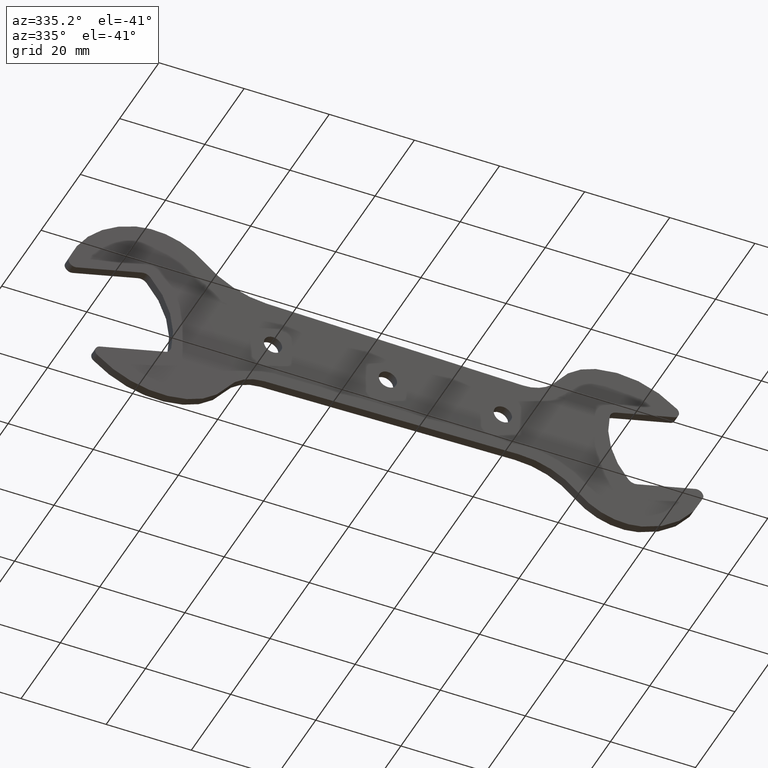
[diagram: clean part render]
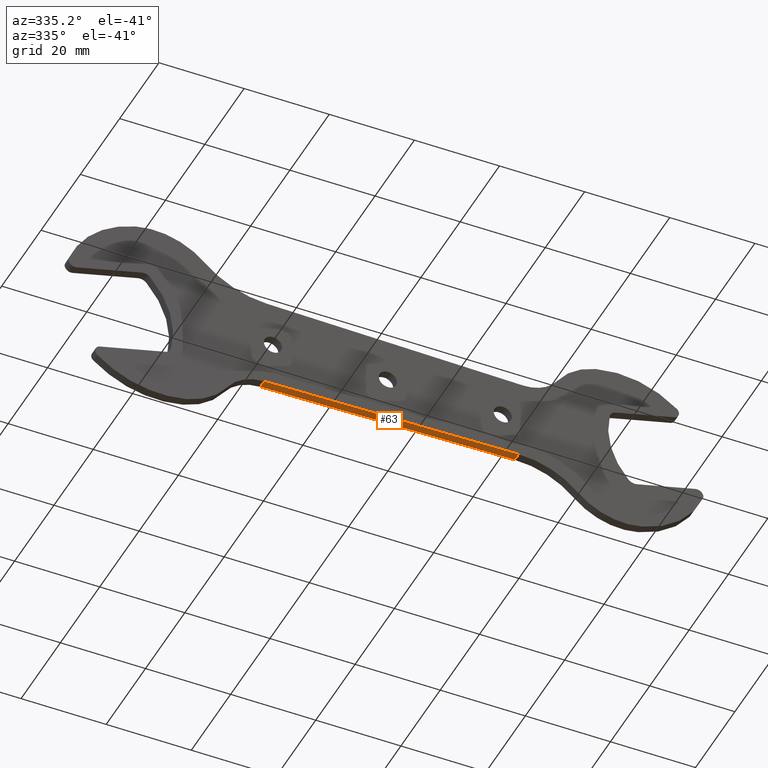
[diagram: same view with one face highlighted and labeled with its STEP entity id]
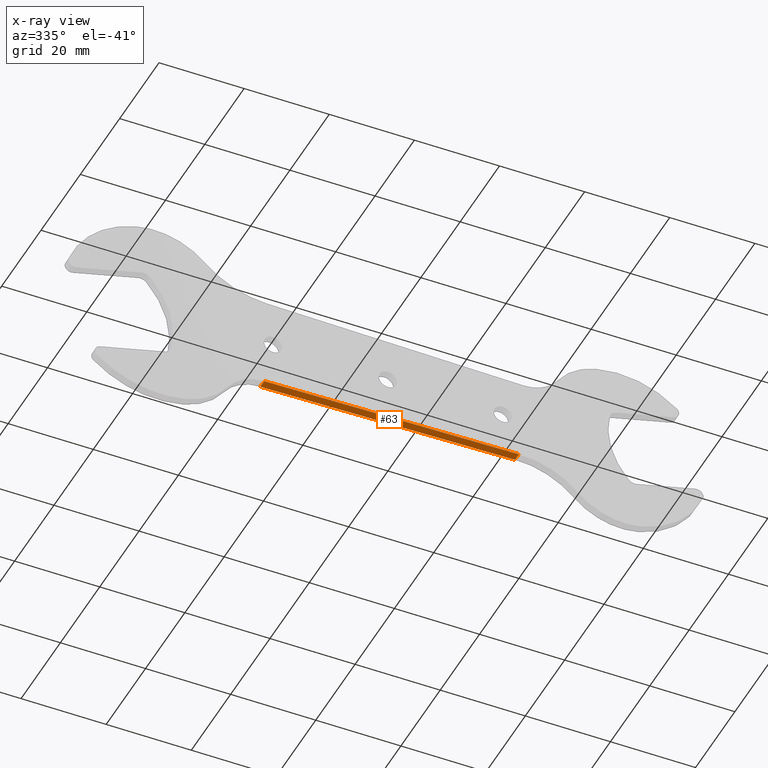
[diagram: x-ray of the same camera — body ghosted, the highlighted face saturated]
A machine part, auxiliary view. The second image highlights one B-rep face of the part: STEP entity #63.
The next image is the same camera in x-ray: the body ghosted, the highlighted face saturated — about 0% of this face is hidden behind the body in this view.
In plain terms, the highlighted planar face has unit normal (-0.0193, 0, 0.9998).
Its self-contained STEP definition (entity closure, byte-faithful):
#63=ADVANCED_FACE('',(#313),#312,.F.);
#312=PLANE('',#566);
#313=FACE_OUTER_BOUND('',#567,.T.);
#563=CARTESIAN_POINT('',(-3.50531633269E+01,-2.00000000000E-01,-1.11887434925E+01));
#564=DIRECTION('',(-1.93064773150E-02,0.00000000000E+00,9.99813612597E-01));
#565=DIRECTION('',(9.99813612597E-01,0.00000000000E+00,1.93064773150E-02));
#566=AXIS2_PLACEMENT_3D('',#563,#564,#565);
#567=EDGE_LOOP('',(#780,#781,#782,#783));
#780=ORIENTED_EDGE('',*,*,#879,.T.);
#781=ORIENTED_EDGE('',*,*,#922,.F.);
#782=ORIENTED_EDGE('',*,*,#860,.F.);
#783=ORIENTED_EDGE('',*,*,#921,.T.);
#860=EDGE_CURVE('',#1121,#1128,#1129,.T.);
#879=EDGE_CURVE('',#1260,#1253,#1261,.T.);
#921=EDGE_CURVE('',#1121,#1260,#1536,.T.);
#922=EDGE_CURVE('',#1128,#1253,#1542,.T.);
#1121=VERTEX_POINT('',#1738);
#1128=VERTEX_POINT('',#1743);
#1129=LINE('',#1744,#1745);
#1253=VERTEX_POINT('',#1829);
#1260=VERTEX_POINT('',#1834);
#1261=LINE('',#1835,#1836);
#1536=LINE('',#2005,#2006);
#1542=LINE('',#2008,#2009);
#1738=CARTESIAN_POINT('',(3.07427415672E+01,2.00000000000E+00,-9.91821953754E+00));
#1743=CARTESIAN_POINT('',(-2.90717174274E+01,2.00000000000E+00,-1.10732413147E+01));
#1744=CARTESIAN_POINT('',(3.07427415672E+01,2.00000000000E+00,-9.91821953754E+00));
#1745=VECTOR('',#1746,5.98256097347E+01);
#1746=DIRECTION('',(-9.99813612597E-01,0.00000000000E+00,-1.93064773150E-02));
#1829=CARTESIAN_POINT('',(-2.90717174274E+01,0.00000000000E+00,-1.10732413147E+01));
#1834=CARTESIAN_POINT('',(3.07427415672E+01,0.00000000000E+00,-9.91821953754E+00));
#1835=CARTESIAN_POINT('',(3.07427415672E+01,0.00000000000E+00,-9.91821953754E+00));
#1836=VECTOR('',#1837,5.98256097347E+01);
#1837=DIRECTION('',(-9.99813612597E-01,0.00000000000E+00,-1.93064773150E-02));
#2005=CARTESIAN_POINT('',(3.07427415672E+01,2.00000000000E+00,-9.91821953754E+00));
#2006=VECTOR('',#2007,2.00000000000E+00);
#2007=DIRECTION('',(0.00000000000E+00,-1.00000000000E+00,0.00000000000E+00));
#2008=CARTESIAN_POINT('',(-2.90717174274E+01,2.00000000000E+00,-1.10732413147E+01));
#2009=VECTOR('',#2010,2.00000000000E+00);
#2010=DIRECTION('',(0.00000000000E+00,-1.00000000000E+00,0.00000000000E+00));